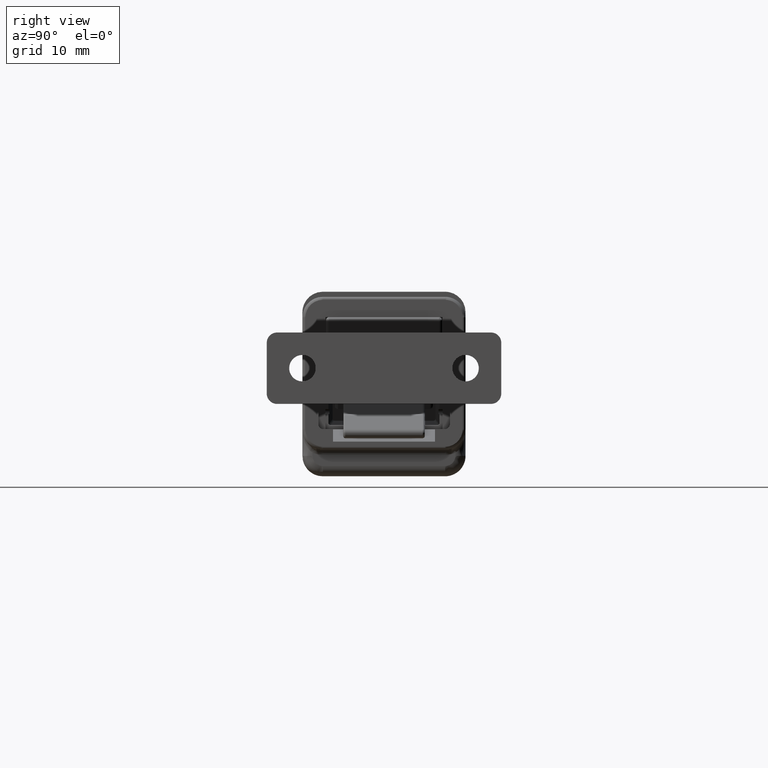
[diagram: clean part render]
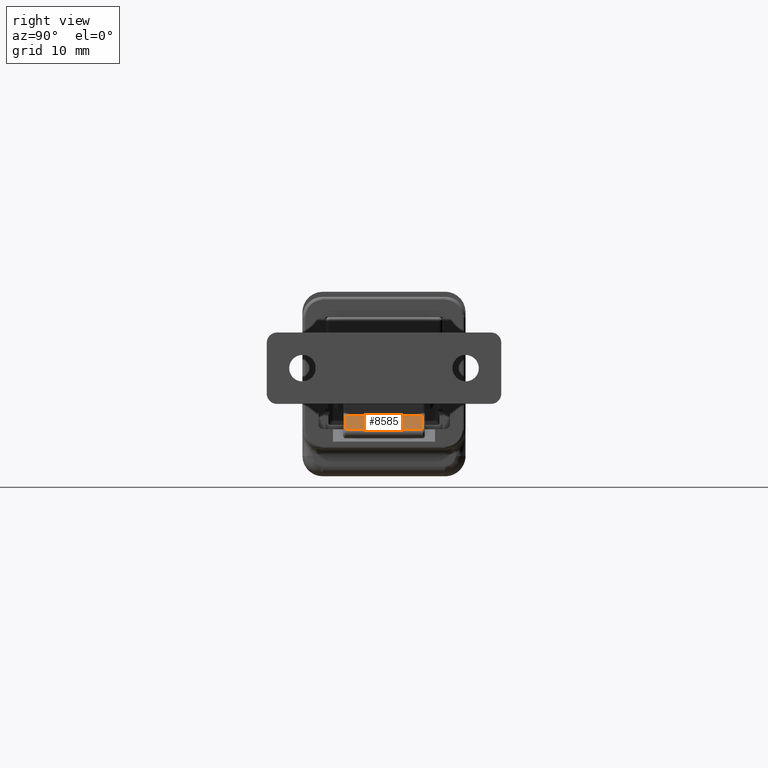
[diagram: same view with one face highlighted and labeled with its STEP entity id]
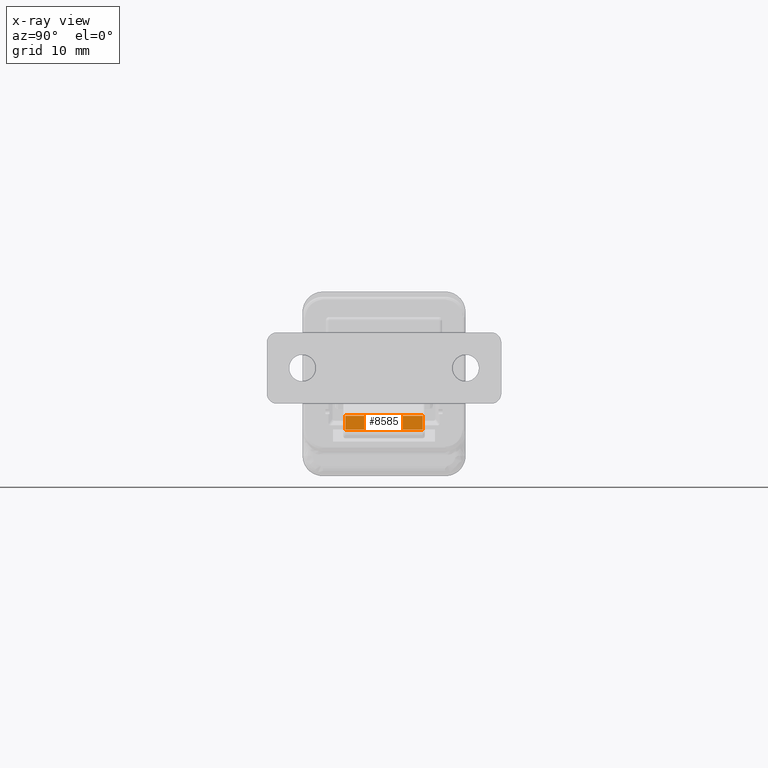
[diagram: x-ray of the same camera — body ghosted, the highlighted face saturated]
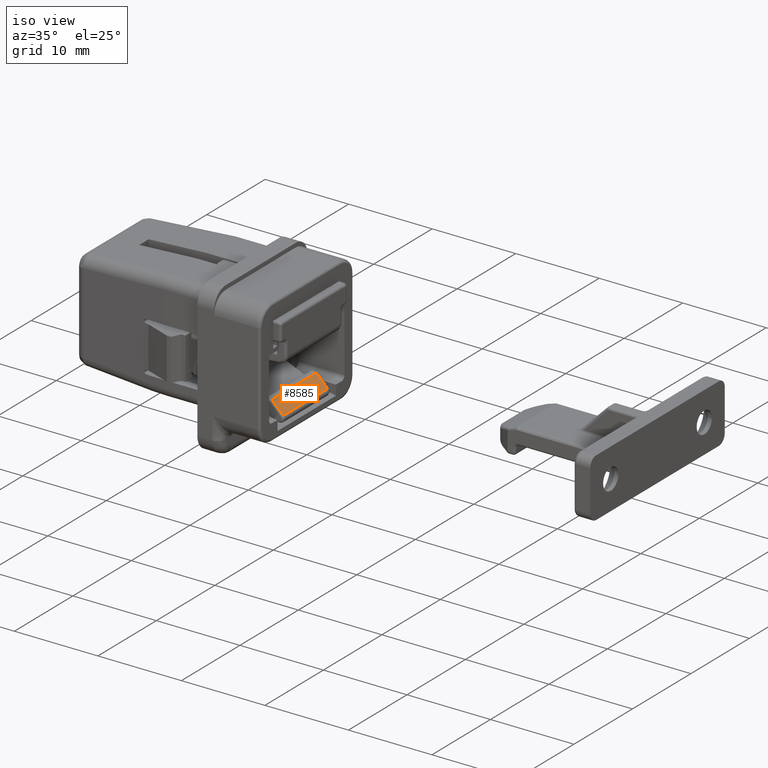
[diagram: same view with one face highlighted and labeled with its STEP entity id]
A machine part, right view. The second image highlights one B-rep face of the part: STEP entity #8585.
The next image is the same camera in x-ray: the body ghosted, the highlighted face saturated — about 0% of this face is hidden behind the body in this view.
A second angle (iso view) of the same face is appended — the face is thin or edge-on in the first view.
In plain terms, the highlighted face is a freeform B-spline surface patch.
Its self-contained STEP definition (entity closure, byte-faithful):
#7822=CARTESIAN_POINT('',(-1.524632503315880,-3.799999999999915,-4.674054649605989));
#7823=VERTEX_POINT('',#7822);
#7929=CARTESIAN_POINT('',(-0.150543470044921,-3.799999999999915,-6.016839685618290));
#7930=VERTEX_POINT('',#7929);
#7944=CARTESIAN_POINT('',(-1.524632503315880,-3.799999999999915,-4.674054649605989));
#7945=CARTESIAN_POINT('',(-0.150543470044921,-3.799999999999915,-6.016839685618290));
#7946=QUASI_UNIFORM_CURVE('',1,(#7944,#7945),.UNSPECIFIED.,.F.,.U.);
#7947=EDGE_CURVE('',#7823,#7930,#7946,.T.);
#8137=CARTESIAN_POINT('',(-0.150543470044921,3.800000000000000,-6.016839685618290));
#8138=VERTEX_POINT('',#8137);
#8185=CARTESIAN_POINT('',(-1.524632503315880,3.800000000000000,-4.674054649605989));
#8186=VERTEX_POINT('',#8185);
#8200=CARTESIAN_POINT('',(-0.150543470044921,3.800000000000000,-6.016839685618290));
#8201=CARTESIAN_POINT('',(-1.524632503315880,3.800000000000000,-4.674054649605989));
#8202=QUASI_UNIFORM_CURVE('',1,(#8200,#8201),.UNSPECIFIED.,.F.,.U.);
#8203=EDGE_CURVE('',#8138,#8186,#8202,.T.);
#8559=CARTESIAN_POINT('',(-0.150543470044921,3.800000000000000,-6.016839685618290));
#8560=CARTESIAN_POINT('',(-0.150543470044921,-3.799999999999915,-6.016839685618290));
#8561=QUASI_UNIFORM_CURVE('',1,(#8559,#8560),.UNSPECIFIED.,.F.,.U.);
#8562=EDGE_CURVE('',#8138,#7930,#8561,.T.);
#8570=CARTESIAN_POINT('',(-0.081907725496284,-4.179619985269635,-6.083911795564525));
#8571=CARTESIAN_POINT('',(-1.593268284720453,-4.179619985269635,-4.606982503643451));
#8572=CARTESIAN_POINT('',(-0.081907725496284,4.179620189117606,-6.083911795564524));
#8573=CARTESIAN_POINT('',(-1.593268284720453,4.179620189117606,-4.606982503643451));
#8574=B_SPLINE_SURFACE_WITH_KNOTS('',1,1,((#8570,#8572),(#8571,#8573)),.UNSPECIFIED.,.F.,.F.,.U.,(2,2),(2,2),(0.0,2.113180274683842),(0.0,8.359240174387242),.UNSPECIFIED.);
#8575=CARTESIAN_POINT('',(-1.524632503315880,3.800000000000000,-4.674054649605989));
#8576=CARTESIAN_POINT('',(-1.524632503315880,-3.799999999999915,-4.674054649605989));
#8577=QUASI_UNIFORM_CURVE('',1,(#8575,#8576),.UNSPECIFIED.,.F.,.U.);
#8578=EDGE_CURVE('',#8186,#7823,#8577,.T.);
#8579=ORIENTED_EDGE('',*,*,#8578,.T.);
#8580=ORIENTED_EDGE('',*,*,#7947,.T.);
#8581=ORIENTED_EDGE('',*,*,#8562,.F.);
#8582=ORIENTED_EDGE('',*,*,#8203,.T.);
#8583=EDGE_LOOP('',(#8579,#8580,#8581,#8582));
#8584=FACE_OUTER_BOUND('',#8583,.T.);
#8585=ADVANCED_FACE('',(#8584),#8574,.F.);